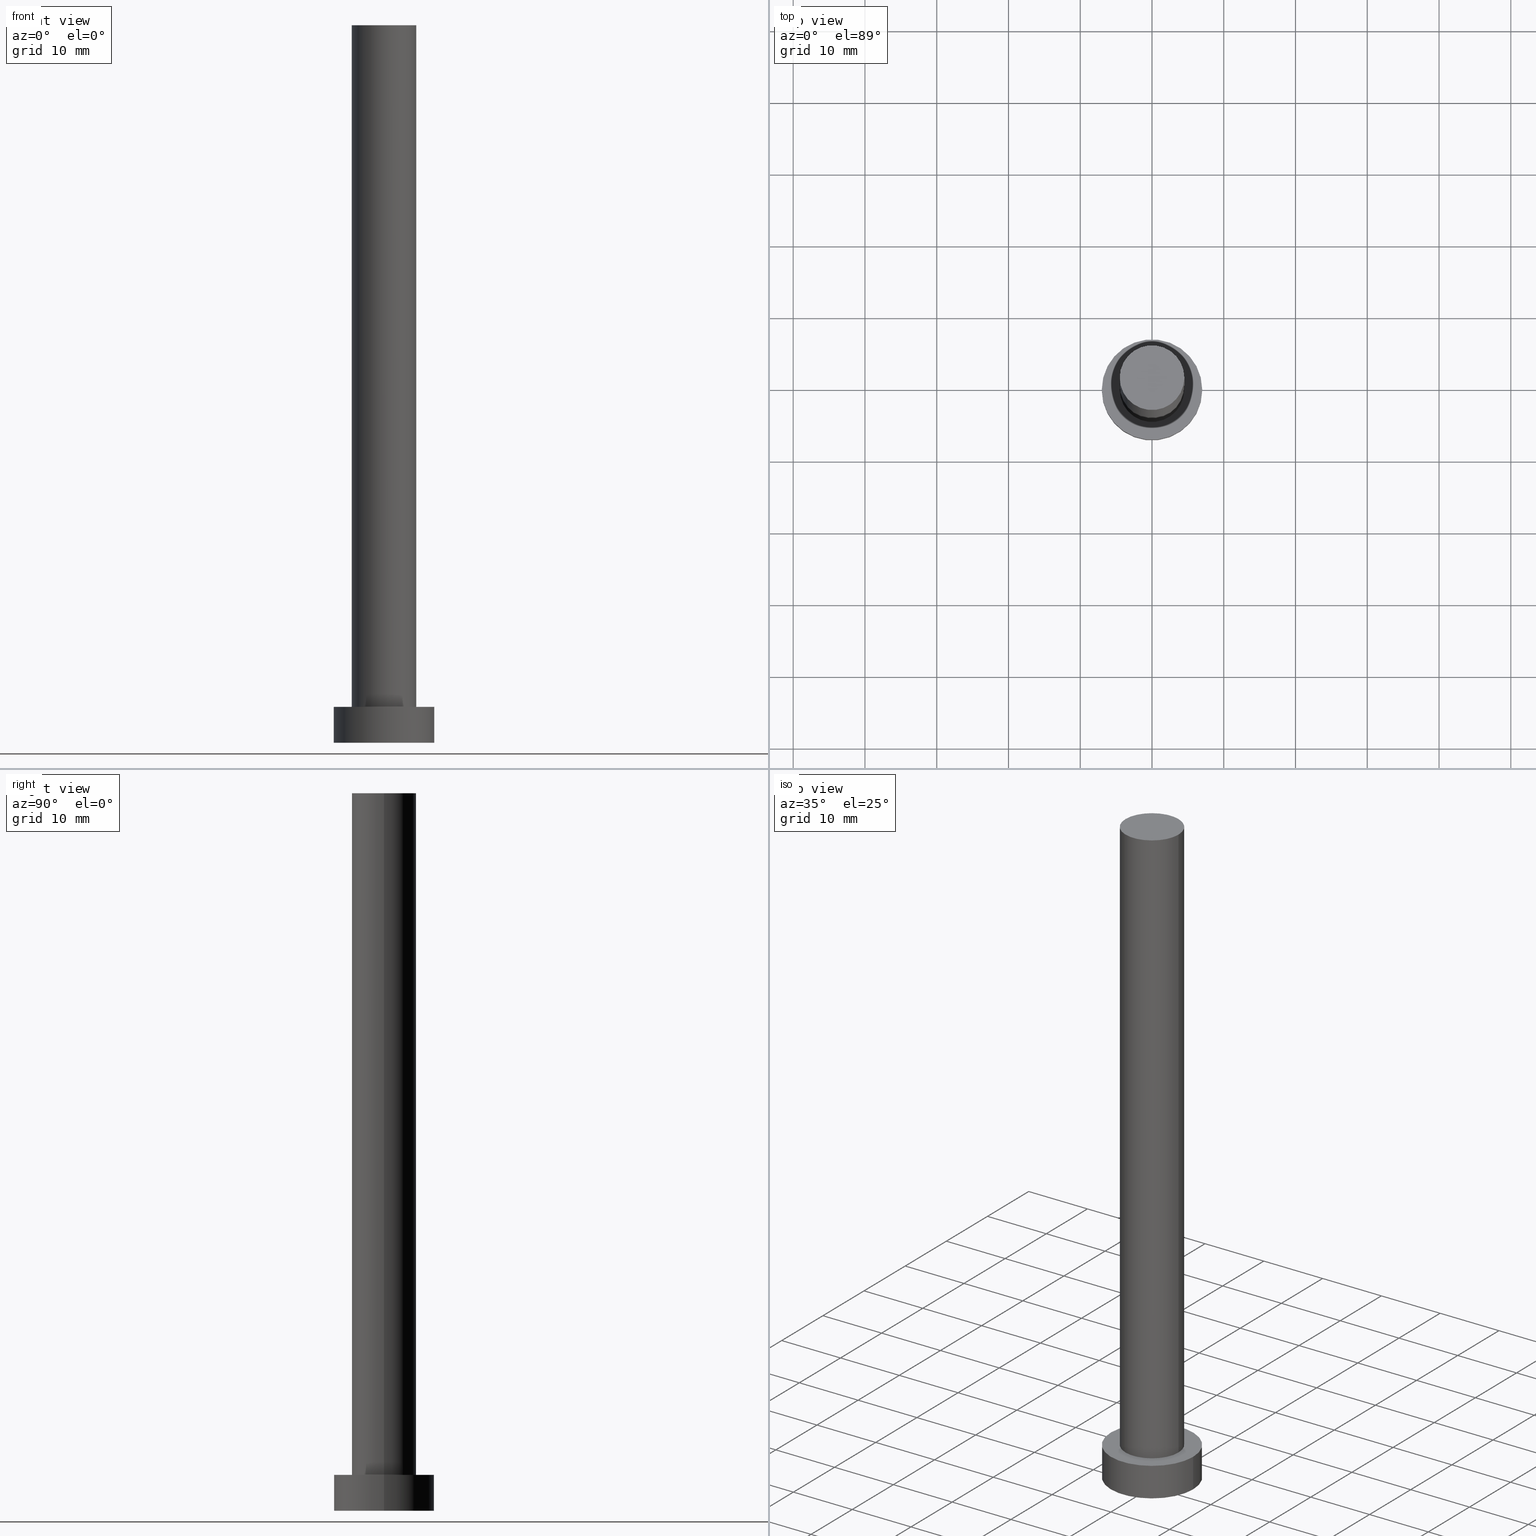
[diagram: canonical four-view strip — front | top / right | iso, engineering-drawing reading convention]
A machine part, canonical four-view strip (front | top / right | iso — engineering-drawing reading convention). The complete STEP part file that produces these views, byte-faithful:
ISO-10303-21;
HEADER;
FILE_DESCRIPTION (( 'STEP AP203' ),
    '1' );
FILE_NAME ('a518.STEP',
    '2023-02-12T11:09:32',
    ( '' ),
    ( '' ),
    'SwSTEP 2.0',
    'SolidWorks 2019',
    '' );
FILE_SCHEMA (( 'CONFIG_CONTROL_DESIGN' ));
ENDSEC;

DATA;
#1 = PERSON_AND_ORGANIZATION ( #196, #230 ) ;
#2 = PLANE ( 'NONE',  #205 ) ;
#3 = CARTESIAN_POINT ( 'NONE',  ( 7.000000000000000000, 8.572527594031473190E-16, 5.000000000000000000 ) ) ;
#4 = APPROVAL_PERSON_ORGANIZATION ( #112, #198, #131 ) ;
#5 = VECTOR ( 'NONE', #178, 1000.000000000000000 ) ;
#6 = LINE ( 'NONE', #46, #52 ) ;
#7 = UNCERTAINTY_MEASURE_WITH_UNIT (LENGTH_MEASURE( 1.000000000000000082E-05 ), #248, 'distance_accuracy_value', 'NONE');
#8 = CARTESIAN_POINT ( 'NONE',  ( 4.500000000000000000, 5.510910596163088569E-16, 5.000000000000000000 ) ) ;
#9 = CARTESIAN_POINT ( 'NONE',  ( -4.500000000000000000, 0.000000000000000000, 100.0000000000000000 ) ) ;
#10 = FACE_OUTER_BOUND ( 'NONE', #203, .T. ) ;
#11 = VERTEX_POINT ( 'NONE', #22 ) ;
#12 = CC_DESIGN_DATE_AND_TIME_ASSIGNMENT ( #237, #17, ( #30 ) ) ;
#13 = DIRECTION ( 'NONE',  ( 1.000000000000000000, 0.000000000000000000, 0.000000000000000000 ) ) ;
#14 = DIRECTION ( 'NONE',  ( -1.000000000000000000, 0.000000000000000000, 0.000000000000000000 ) ) ;
#15 = CALENDAR_DATE ( 2023, 12, 2 ) ;
#16 = DIRECTION ( 'NONE',  ( 0.000000000000000000, 0.000000000000000000, 1.000000000000000000 ) ) ;
#17 = DATE_TIME_ROLE ( 'creation_date' ) ;
#18 = ORIENTED_EDGE ( 'NONE', *, *, #98, .T. ) ;
#19 = COORDINATED_UNIVERSAL_TIME_OFFSET ( 1, 0, .AHEAD. ) ;
#20 = PRODUCT_DEFINITION_FORMATION_WITH_SPECIFIED_SOURCE ( 'LIBOVOLN�', '', #164, .NOT_KNOWN. ) ;
#21 = ORIENTED_EDGE ( 'NONE', *, *, #246, .T. ) ;
#22 = CARTESIAN_POINT ( 'NONE',  ( 7.000000000000000000, 8.572527594031473190E-16, 0.000000000000000000 ) ) ;
#23 = DIRECTION ( 'NONE',  ( 0.000000000000000000, 0.000000000000000000, 1.000000000000000000 ) ) ;
#24 = ADVANCED_FACE ( 'NONE', ( #255 ), #197, .T. ) ;
#25 = AXIS2_PLACEMENT_3D ( 'NONE', #210, #29, #14 ) ;
#26 = ADVANCED_BREP_SHAPE_REPRESENTATION ( 'a518', ( #234, #116 ), #100 ) ;
#27 = EDGE_CURVE ( 'NONE', #161, #155, #117, .T. ) ;
#28 = LINE ( 'NONE', #9, #219 ) ;
#29 = DIRECTION ( 'NONE',  ( -0.000000000000000000, -0.000000000000000000, -1.000000000000000000 ) ) ;
#30 = PRODUCT_DEFINITION ( 'NEZN�M�', '', #20, #229 ) ;
#31 = CC_DESIGN_APPROVAL ( #129, ( #222 ) ) ;
#32 = CARTESIAN_POINT ( 'NONE',  ( -7.000000000000000000, 0.000000000000000000, 5.000000000000000000 ) ) ;
#33 = APPROVAL_STATUS ( 'not_yet_approved' ) ;
#34 = ORIENTED_EDGE ( 'NONE', *, *, #60, .F. ) ;
#35 = LOCAL_TIME ( 12, 9, 32.00000000000000000, #176 ) ;
#36 = CIRCLE ( 'NONE', #185, 4.500000000000000000 ) ;
#37 = EDGE_LOOP ( 'NONE', ( #58, #215, #170, #21 ) ) ;
#38 = DIRECTION ( 'NONE',  ( 1.000000000000000000, 0.000000000000000000, 0.000000000000000000 ) ) ;
#39 = CC_DESIGN_PERSON_AND_ORGANIZATION_ASSIGNMENT ( #55, #211, ( #222 ) ) ;
#40 = APPROVAL_DATE_TIME ( #250, #53 ) ;
#41 = ORIENTED_EDGE ( 'NONE', *, *, #43, .F. ) ;
#42 = ORIENTED_EDGE ( 'NONE', *, *, #167, .F. ) ;
#43 = EDGE_CURVE ( 'NONE', #238, #115, #231, .T. ) ;
#44 = LOCAL_TIME ( 12, 9, 32.00000000000000000, #19 ) ;
#45 = DIRECTION ( 'NONE',  ( 1.000000000000000000, 0.000000000000000000, -0.000000000000000000 ) ) ;
#46 = CARTESIAN_POINT ( 'NONE',  ( 7.000000000000000000, 8.572527594031473190E-16, 5.000000000000000000 ) ) ;
#47 = PERSON_AND_ORGANIZATION_ROLE ( 'creator' ) ;
#48 = EDGE_CURVE ( 'NONE', #120, #119, #36, .T. ) ;
#49 = MECHANICAL_CONTEXT ( 'NONE', #141, 'mechanical' ) ;
#50 = PERSON_AND_ORGANIZATION ( #196, #230 ) ;
#51 = PRODUCT_DEFINITION_SHAPE ( 'NONE', 'NONE',  #30 ) ;
#52 = VECTOR ( 'NONE', #89, 1000.000000000000000 ) ;
#53 = APPROVAL ( #79, 'NEUR�EN�' ) ;
#54 = DIRECTION ( 'NONE',  ( 0.000000000000000000, 0.000000000000000000, 1.000000000000000000 ) ) ;
#55 = PERSON_AND_ORGANIZATION ( #196, #230 ) ;
#56 = AXIS2_PLACEMENT_3D ( 'NONE', #153, #73, #109 ) ;
#57 = APPROVAL_ROLE ( '' ) ;
#58 = ORIENTED_EDGE ( 'NONE', *, *, #214, .F. ) ;
#59 = APPROVAL_STATUS ( 'not_yet_approved' ) ;
#60 = EDGE_CURVE ( 'NONE', #11, #115, #212, .T. ) ;
#61 = DIRECTION ( 'NONE',  ( 1.000000000000000000, 0.000000000000000000, 0.000000000000000000 ) ) ;
#62 = COORDINATED_UNIVERSAL_TIME_OFFSET ( 1, 0, .AHEAD. ) ;
#63 = EDGE_LOOP ( 'NONE', ( #188, #84, #253, #42 ) ) ;
#64 = PERSON_AND_ORGANIZATION_ROLE ( 'creator' ) ;
#65 = AXIS2_PLACEMENT_3D ( 'NONE', #241, #106, #45 ) ;
#66 = FACE_OUTER_BOUND ( 'NONE', #97, .T. ) ;
#67 = ADVANCED_FACE ( 'NONE', ( #66 ), #199, .F. ) ;
#68 = DIRECTION ( 'NONE',  ( -0.000000000000000000, -0.000000000000000000, -1.000000000000000000 ) ) ;
#69 = CIRCLE ( 'NONE', #56, 4.500000000000000000 ) ;
#70 = AXIS2_PLACEMENT_3D ( 'NONE', #140, #220, #125 ) ;
#71 = CC_DESIGN_APPROVAL ( #198, ( #30 ) ) ;
#72 = CARTESIAN_POINT ( 'NONE',  ( 4.500000000000000000, 5.510910596163088569E-16, 100.0000000000000000 ) ) ;
#73 = DIRECTION ( 'NONE',  ( 0.000000000000000000, 0.000000000000000000, 1.000000000000000000 ) ) ;
#74 = CALENDAR_DATE ( 2023, 12, 2 ) ;
#75 = ADVANCED_FACE ( 'NONE', ( #201, #104 ), #2, .T. ) ;
#76 =( NAMED_UNIT ( * ) PLANE_ANGLE_UNIT ( ) SI_UNIT ( $, .RADIAN. ) );
#77 = APPROVAL_DATE_TIME ( #202, #129 ) ;
#78 = ORIENTED_EDGE ( 'NONE', *, *, #43, .T. ) ;
#79 = APPROVAL_STATUS ( 'not_yet_approved' ) ;
#80 = DIRECTION ( 'NONE',  ( -0.000000000000000000, -0.000000000000000000, -1.000000000000000000 ) ) ;
#81 = APPROVAL_PERSON_ORGANIZATION ( #139, #129, #124 ) ;
#82 = CALENDAR_DATE ( 2023, 12, 2 ) ;
#83 = EDGE_LOOP ( 'NONE', ( #177, #102 ) ) ;
#84 = ORIENTED_EDGE ( 'NONE', *, *, #214, .T. ) ;
#85 = SECURITY_CLASSIFICATION_LEVEL ( 'unclassified' ) ;
#86 = DIRECTION ( 'NONE',  ( 0.000000000000000000, 0.000000000000000000, 1.000000000000000000 ) ) ;
#87 = CARTESIAN_POINT ( 'NONE',  ( 0.000000000000000000, 0.000000000000000000, 100.0000000000000000 ) ) ;
#88 = DIRECTION ( 'NONE',  ( -1.000000000000000000, 0.000000000000000000, 0.000000000000000000 ) ) ;
#89 = DIRECTION ( 'NONE',  ( -0.000000000000000000, -0.000000000000000000, -1.000000000000000000 ) ) ;
#90 = FACE_OUTER_BOUND ( 'NONE', #136, .T. ) ;
#91 = AXIS2_PLACEMENT_3D ( 'NONE', #233, #156, #195 ) ;
#92 = CYLINDRICAL_SURFACE ( 'NONE', #193, 7.000000000000000000 ) ;
#93 = ORIENTED_EDGE ( 'NONE', *, *, #242, .F. ) ;
#94 = CIRCLE ( 'NONE', #70, 7.000000000000000000 ) ;
#95 = DIRECTION ( 'NONE',  ( 0.000000000000000000, 0.000000000000000000, 1.000000000000000000 ) ) ;
#96 = ORIENTED_EDGE ( 'NONE', *, *, #121, .F. ) ;
#97 = EDGE_LOOP ( 'NONE', ( #218, #34 ) ) ;
#98 = EDGE_CURVE ( 'NONE', #115, #11, #94, .T. ) ;
#99 = CARTESIAN_POINT ( 'NONE',  ( -7.000000000000000000, 0.000000000000000000, 5.000000000000000000 ) ) ;
#100 =( GEOMETRIC_REPRESENTATION_CONTEXT ( 3 ) GLOBAL_UNCERTAINTY_ASSIGNED_CONTEXT ( ( #7 ) ) GLOBAL_UNIT_ASSIGNED_CONTEXT ( ( #248, #76, #169 ) ) REPRESENTATION_CONTEXT ( 'NONE', 'WORKASPACE' ) );
#101 = COORDINATED_UNIVERSAL_TIME_OFFSET ( 1, 0, .AHEAD. ) ;
#102 = ORIENTED_EDGE ( 'NONE', *, *, #48, .F. ) ;
#103 = DATE_TIME_ROLE ( 'classification_date' ) ;
#104 = FACE_OUTER_BOUND ( 'NONE', #239, .T. ) ;
#105 = VERTEX_POINT ( 'NONE', #3 ) ;
#106 = DIRECTION ( 'NONE',  ( 0.000000000000000000, 0.000000000000000000, 1.000000000000000000 ) ) ;
#107 = EDGE_CURVE ( 'NONE', #155, #161, #208, .T. ) ;
#108 = CLOSED_SHELL ( 'NONE', ( #24, #143, #162, #75, #67, #224, #147 ) ) ;
#109 = DIRECTION ( 'NONE',  ( 1.000000000000000000, 0.000000000000000000, 0.000000000000000000 ) ) ;
#110 = APPLICATION_CONTEXT ( 'configuration controlled 3d designs of mechanical parts and assemblies' ) ;
#111 = AXIS2_PLACEMENT_3D ( 'NONE', #187, #174, #243 ) ;
#112 = PERSON_AND_ORGANIZATION ( #196, #230 ) ;
#113 = APPLICATION_PROTOCOL_DEFINITION ( 'international standard', 'config_control_design', 1994, #141 ) ;
#114 = DATE_AND_TIME ( #74, #149 ) ;
#115 = VERTEX_POINT ( 'NONE', #146 ) ;
#116 = AXIS2_PLACEMENT_3D ( 'NONE', #132, #54, #227 ) ;
#117 = CIRCLE ( 'NONE', #91, 4.500000000000000000 ) ;
#118 = CARTESIAN_POINT ( 'NONE',  ( 0.000000000000000000, 0.000000000000000000, 100.0000000000000000 ) ) ;
#119 = VERTEX_POINT ( 'NONE', #186 ) ;
#120 = VERTEX_POINT ( 'NONE', #8 ) ;
#121 = EDGE_CURVE ( 'NONE', #105, #11, #6, .T. ) ;
#122 = DATE_AND_TIME ( #175, #44 ) ;
#123 = ORIENTED_EDGE ( 'NONE', *, *, #242, .T. ) ;
#124 = APPROVAL_ROLE ( '' ) ;
#125 = DIRECTION ( 'NONE',  ( 1.000000000000000000, 0.000000000000000000, 0.000000000000000000 ) ) ;
#126 = CARTESIAN_POINT ( 'NONE',  ( 4.500000000000000000, 5.510910596163088569E-16, 100.0000000000000000 ) ) ;
#127 = FACE_OUTER_BOUND ( 'NONE', #151, .T. ) ;
#128 = DIRECTION ( 'NONE',  ( -0.000000000000000000, -0.000000000000000000, -1.000000000000000000 ) ) ;
#129 = APPROVAL ( #59, 'NEUR�EN�' ) ;
#130 = AXIS2_PLACEMENT_3D ( 'NONE', #87, #16, #168 ) ;
#131 = APPROVAL_ROLE ( '' ) ;
#132 = CARTESIAN_POINT ( 'NONE',  ( 0.000000000000000000, 0.000000000000000000, 0.000000000000000000 ) ) ;
#133 = EDGE_CURVE ( 'NONE', #105, #238, #166, .T. ) ;
#134 = CARTESIAN_POINT ( 'NONE',  ( 0.000000000000000000, 0.000000000000000000, 5.000000000000000000 ) ) ;
#135 = AXIS2_PLACEMENT_3D ( 'NONE', #183, #137, #38 ) ;
#136 = EDGE_LOOP ( 'NONE', ( #251, #194 ) ) ;
#137 = DIRECTION ( 'NONE',  ( 0.000000000000000000, 0.000000000000000000, 1.000000000000000000 ) ) ;
#138 = DIRECTION ( 'NONE',  ( 1.000000000000000000, 0.000000000000000000, -0.000000000000000000 ) ) ;
#139 = PERSON_AND_ORGANIZATION ( #196, #230 ) ;
#140 = CARTESIAN_POINT ( 'NONE',  ( 0.000000000000000000, 0.000000000000000000, 0.000000000000000000 ) ) ;
#141 = APPLICATION_CONTEXT ( 'configuration controlled 3d designs of mechanical parts and assemblies' ) ;
#142 = CARTESIAN_POINT ( 'NONE',  ( 0.000000000000000000, 0.000000000000000000, 5.000000000000000000 ) ) ;
#143 = ADVANCED_FACE ( 'NONE', ( #127 ), #92, .T. ) ;
#144 = CC_DESIGN_SECURITY_CLASSIFICATION ( #222, ( #20 ) ) ;
#145 = AXIS2_PLACEMENT_3D ( 'NONE', #118, #80, #213 ) ;
#146 = CARTESIAN_POINT ( 'NONE',  ( -7.000000000000000000, 0.000000000000000000, 0.000000000000000000 ) ) ;
#147 = ADVANCED_FACE ( 'NONE', ( #90 ), #163, .T. ) ;
#148 = CARTESIAN_POINT ( 'NONE',  ( -4.500000000000000000, 0.000000000000000000, 100.0000000000000000 ) ) ;
#149 = LOCAL_TIME ( 12, 9, 32.00000000000000000, #173 ) ;
#150 = FACE_OUTER_BOUND ( 'NONE', #37, .T. ) ;
#151 = EDGE_LOOP ( 'NONE', ( #158, #249, #216, #41 ) ) ;
#152 = CC_DESIGN_PERSON_AND_ORGANIZATION_ASSIGNMENT ( #182, #64, ( #20 ) ) ;
#153 = CARTESIAN_POINT ( 'NONE',  ( 0.000000000000000000, 0.000000000000000000, 5.000000000000000000 ) ) ;
#154 = SHAPE_DEFINITION_REPRESENTATION ( #51, #26 ) ;
#155 = VERTEX_POINT ( 'NONE', #126 ) ;
#156 = DIRECTION ( 'NONE',  ( 0.000000000000000000, 0.000000000000000000, 1.000000000000000000 ) ) ;
#157 = LOCAL_TIME ( 12, 9, 32.00000000000000000, #62 ) ;
#158 = ORIENTED_EDGE ( 'NONE', *, *, #133, .F. ) ;
#159 = CARTESIAN_POINT ( 'NONE',  ( 0.000000000000000000, 0.000000000000000000, 5.000000000000000000 ) ) ;
#160 = DIRECTION ( 'NONE',  ( 1.000000000000000000, 0.000000000000000000, -0.000000000000000000 ) ) ;
#161 = VERTEX_POINT ( 'NONE', #148 ) ;
#162 = ADVANCED_FACE ( 'NONE', ( #10 ), #206, .T. ) ;
#163 = PLANE ( 'NONE',  #65 ) ;
#164 = PRODUCT ( 'a518', 'a518', '', ( #49 ) ) ;
#165 = APPROVAL_PERSON_ORGANIZATION ( #1, #53, #57 ) ;
#166 = CIRCLE ( 'NONE', #226, 7.000000000000000000 ) ;
#167 = EDGE_CURVE ( 'NONE', #161, #119, #28, .T. ) ;
#168 = DIRECTION ( 'NONE',  ( 1.000000000000000000, 0.000000000000000000, 0.000000000000000000 ) ) ;
#169 =( NAMED_UNIT ( * ) SI_UNIT ( $, .STERADIAN. ) SOLID_ANGLE_UNIT ( ) );
#170 = ORIENTED_EDGE ( 'NONE', *, *, #167, .T. ) ;
#171 = CC_DESIGN_PERSON_AND_ORGANIZATION_ASSIGNMENT ( #50, #207, ( #164 ) ) ;
#172 = LINE ( 'NONE', #72, #179 ) ;
#173 = COORDINATED_UNIVERSAL_TIME_OFFSET ( 1, 0, .AHEAD. ) ;
#174 = DIRECTION ( 'NONE',  ( -0.000000000000000000, -0.000000000000000000, -1.000000000000000000 ) ) ;
#175 = CALENDAR_DATE ( 2023, 12, 2 ) ;
#176 = COORDINATED_UNIVERSAL_TIME_OFFSET ( 1, 0, .AHEAD. ) ;
#177 = ORIENTED_EDGE ( 'NONE', *, *, #246, .F. ) ;
#178 = DIRECTION ( 'NONE',  ( -0.000000000000000000, -0.000000000000000000, -1.000000000000000000 ) ) ;
#179 = VECTOR ( 'NONE', #245, 1000.000000000000000 ) ;
#180 = CC_DESIGN_DATE_AND_TIME_ASSIGNMENT ( #122, #103, ( #222 ) ) ;
#181 = CARTESIAN_POINT ( 'NONE',  ( 0.000000000000000000, 0.000000000000000000, 0.000000000000000000 ) ) ;
#182 = PERSON_AND_ORGANIZATION ( #196, #230 ) ;
#183 = CARTESIAN_POINT ( 'NONE',  ( 0.000000000000000000, 0.000000000000000000, 0.000000000000000000 ) ) ;
#184 = CC_DESIGN_APPROVAL ( #53, ( #20 ) ) ;
#185 = AXIS2_PLACEMENT_3D ( 'NONE', #159, #23, #61 ) ;
#186 = CARTESIAN_POINT ( 'NONE',  ( -4.500000000000000000, 0.000000000000000000, 5.000000000000000000 ) ) ;
#187 = CARTESIAN_POINT ( 'NONE',  ( 0.000000000000000000, 0.000000000000000000, 100.0000000000000000 ) ) ;
#188 = ORIENTED_EDGE ( 'NONE', *, *, #107, .F. ) ;
#189 = AXIS2_PLACEMENT_3D ( 'NONE', #190, #95, #13 ) ;
#190 = CARTESIAN_POINT ( 'NONE',  ( 0.000000000000000000, 0.000000000000000000, 5.000000000000000000 ) ) ;
#191 = APPLICATION_PROTOCOL_DEFINITION ( 'international standard', 'config_control_design', 1994, #110 ) ;
#192 = APPROVAL_DATE_TIME ( #114, #198 ) ;
#193 = AXIS2_PLACEMENT_3D ( 'NONE', #142, #68, #88 ) ;
#194 = ORIENTED_EDGE ( 'NONE', *, *, #107, .T. ) ;
#195 = DIRECTION ( 'NONE',  ( 1.000000000000000000, 0.000000000000000000, 0.000000000000000000 ) ) ;
#196 = PERSON ( 'NEUR�EN�', 'NEUR�EN�', 'NEUR�EN�', ('NEUR�EN�'), ('NEUR�EN�'), ('NEUR�EN�') ) ;
#197 = CYLINDRICAL_SURFACE ( 'NONE', #145, 4.500000000000000000 ) ;
#198 = APPROVAL ( #33, 'NEUR�EN�' ) ;
#199 = PLANE ( 'NONE',  #247 ) ;
#200 = PERSON_AND_ORGANIZATION_ROLE ( 'design_supplier' ) ;
#201 = FACE_BOUND ( 'NONE', #83, .T. ) ;
#202 = DATE_AND_TIME ( #15, #252 ) ;
#203 = EDGE_LOOP ( 'NONE', ( #96, #93, #78, #18 ) ) ;
#204 = DIRECTION ( 'NONE',  ( 0.000000000000000000, 0.000000000000000000, 1.000000000000000000 ) ) ;
#205 = AXIS2_PLACEMENT_3D ( 'NONE', #134, #86, #160 ) ;
#206 = CYLINDRICAL_SURFACE ( 'NONE', #25, 7.000000000000000000 ) ;
#207 = PERSON_AND_ORGANIZATION_ROLE ( 'design_owner' ) ;
#208 = CIRCLE ( 'NONE', #130, 4.500000000000000000 ) ;
#209 = CYLINDRICAL_SURFACE ( 'NONE', #111, 4.500000000000000000 ) ;
#210 = CARTESIAN_POINT ( 'NONE',  ( 0.000000000000000000, 0.000000000000000000, 5.000000000000000000 ) ) ;
#211 = PERSON_AND_ORGANIZATION_ROLE ( 'classification_officer' ) ;
#212 = CIRCLE ( 'NONE', #135, 7.000000000000000000 ) ;
#213 = DIRECTION ( 'NONE',  ( -1.000000000000000000, 0.000000000000000000, 0.000000000000000000 ) ) ;
#214 = EDGE_CURVE ( 'NONE', #155, #120, #172, .T. ) ;
#215 = ORIENTED_EDGE ( 'NONE', *, *, #27, .F. ) ;
#216 = ORIENTED_EDGE ( 'NONE', *, *, #60, .T. ) ;
#217 = CALENDAR_DATE ( 2023, 12, 2 ) ;
#218 = ORIENTED_EDGE ( 'NONE', *, *, #98, .F. ) ;
#219 = VECTOR ( 'NONE', #128, 1000.000000000000000 ) ;
#220 = DIRECTION ( 'NONE',  ( 0.000000000000000000, 0.000000000000000000, 1.000000000000000000 ) ) ;
#221 = CARTESIAN_POINT ( 'NONE',  ( 0.000000000000000000, 0.000000000000000000, 5.000000000000000000 ) ) ;
#222 = SECURITY_CLASSIFICATION ( '', '', #85 ) ;
#223 = CC_DESIGN_PERSON_AND_ORGANIZATION_ASSIGNMENT ( #232, #200, ( #20 ) ) ;
#224 = ADVANCED_FACE ( 'NONE', ( #150 ), #209, .T. ) ;
#225 = PERSON_AND_ORGANIZATION ( #196, #230 ) ;
#226 = AXIS2_PLACEMENT_3D ( 'NONE', #221, #204, #240 ) ;
#227 = DIRECTION ( 'NONE',  ( 1.000000000000000000, 0.000000000000000000, 0.000000000000000000 ) ) ;
#228 = ORIENTED_EDGE ( 'NONE', *, *, #133, .T. ) ;
#229 = DESIGN_CONTEXT ( 'detailed design', #110, 'design' ) ;
#230 = ORGANIZATION ( 'NEUR�EN�', 'NEUR�EN�', '' ) ;
#231 = LINE ( 'NONE', #99, #5 ) ;
#232 = PERSON_AND_ORGANIZATION ( #196, #230 ) ;
#233 = CARTESIAN_POINT ( 'NONE',  ( 0.000000000000000000, 0.000000000000000000, 100.0000000000000000 ) ) ;
#234 = MANIFOLD_SOLID_BREP ( 'P�idat vysunut�m3', #108 ) ;
#235 = DIRECTION ( 'NONE',  ( 0.000000000000000000, 0.000000000000000000, 1.000000000000000000 ) ) ;
#236 = CC_DESIGN_PERSON_AND_ORGANIZATION_ASSIGNMENT ( #225, #47, ( #30 ) ) ;
#237 = DATE_AND_TIME ( #217, #157 ) ;
#238 = VERTEX_POINT ( 'NONE', #32 ) ;
#239 = EDGE_LOOP ( 'NONE', ( #123, #228 ) ) ;
#240 = DIRECTION ( 'NONE',  ( 1.000000000000000000, 0.000000000000000000, 0.000000000000000000 ) ) ;
#241 = CARTESIAN_POINT ( 'NONE',  ( 0.000000000000000000, 0.000000000000000000, 100.0000000000000000 ) ) ;
#242 = EDGE_CURVE ( 'NONE', #238, #105, #244, .T. ) ;
#243 = DIRECTION ( 'NONE',  ( -1.000000000000000000, 0.000000000000000000, 0.000000000000000000 ) ) ;
#244 = CIRCLE ( 'NONE', #189, 7.000000000000000000 ) ;
#245 = DIRECTION ( 'NONE',  ( -0.000000000000000000, -0.000000000000000000, -1.000000000000000000 ) ) ;
#246 = EDGE_CURVE ( 'NONE', #119, #120, #69, .T. ) ;
#247 = AXIS2_PLACEMENT_3D ( 'NONE', #181, #235, #138 ) ;
#248 =( LENGTH_UNIT ( ) NAMED_UNIT ( * ) SI_UNIT ( .MILLI., .METRE. ) );
#249 = ORIENTED_EDGE ( 'NONE', *, *, #121, .T. ) ;
#250 = DATE_AND_TIME ( #82, #35 ) ;
#251 = ORIENTED_EDGE ( 'NONE', *, *, #27, .T. ) ;
#252 = LOCAL_TIME ( 12, 9, 32.00000000000000000, #101 ) ;
#253 = ORIENTED_EDGE ( 'NONE', *, *, #48, .T. ) ;
#254 = PRODUCT_RELATED_PRODUCT_CATEGORY ( 'detail', '', ( #164 ) ) ;
#255 = FACE_OUTER_BOUND ( 'NONE', #63, .T. ) ;
ENDSEC;
END-ISO-10303-21;
